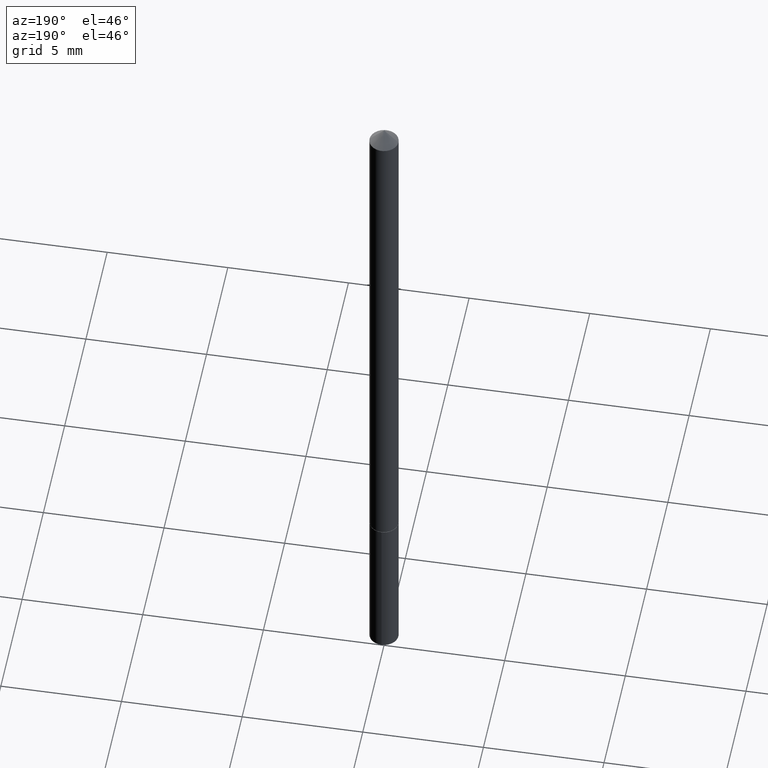
[diagram: clean part render]
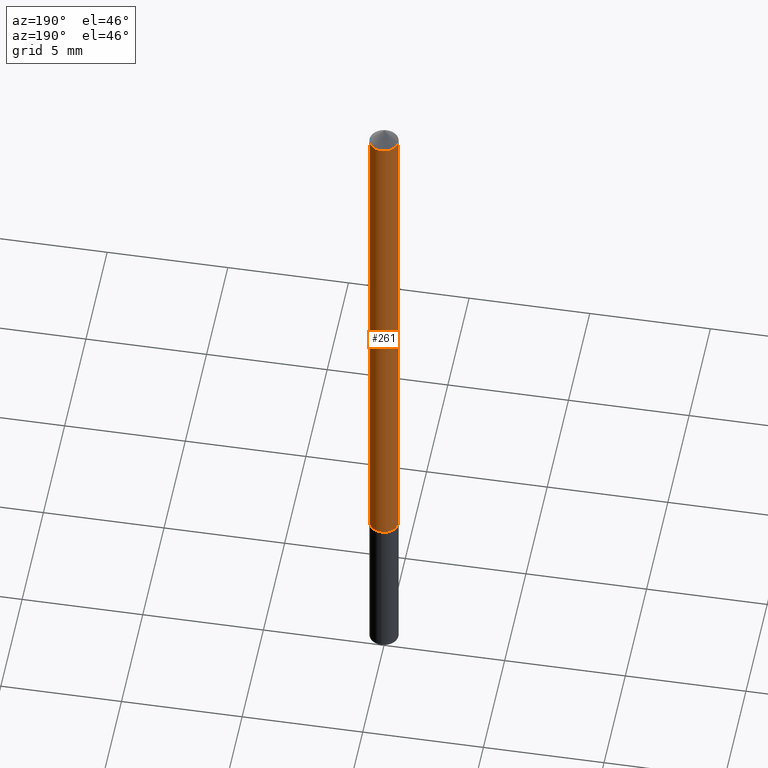
[diagram: same view with one face highlighted and labeled with its STEP entity id]
A machine part, auxiliary view. The second image highlights one B-rep face of the part: STEP entity #261.
In plain terms, the highlighted cylindrical surface (edge-blend (fillet) strip) has radius 0.5994 mm, axis along (-0, 0, 1).
Its self-contained STEP definition (entity closure, byte-faithful):
#7 = CARTESIAN_POINT ( 'NONE',  ( 0.02360000000000010700, -3.351822085289419381E-15, -0.9127999999999999448 ) ) ;
#14 = DIRECTION ( 'NONE',  ( 1.000000000000000000, -6.982962677686265133E-15, 4.876176775795935793E-29 ) ) ;
#18 = ORIENTED_EDGE ( 'NONE', *, *, #194, .T. ) ;
#20 = FACE_OUTER_BOUND ( 'NONE', #122, .T. ) ;
#43 = CIRCLE ( 'NONE', #247, 0.02360000000000000639 ) ;
#50 = VECTOR ( 'NONE', #348, 39.37007874015748143 ) ;
#53 = DIRECTION ( 'NONE',  ( 1.000000000000000000, -6.982962677686267499E-15, 0.000000000000000000 ) ) ;
#57 = EDGE_CURVE ( 'NONE', #349, #145, #43, .T. ) ;
#64 = EDGE_CURVE ( 'NONE', #176, #145, #80, .T. ) ;
#71 = CARTESIAN_POINT ( 'NONE',  ( 0.000000000000000000, 0.000000000000000000, 0.000000000000000000 ) ) ;
#75 = CIRCLE ( 'NONE', #308, 0.02360000000000010700 ) ;
#77 = CARTESIAN_POINT ( 'NONE',  ( 7.642090019328602662E-31, -1.091087918388490267E-16, -0.03125000000000020817 ) ) ;
#80 = LINE ( 'NONE', #155, #92 ) ;
#92 = VECTOR ( 'NONE', #158, 39.37007874015748143 ) ;
#116 = CARTESIAN_POINT ( 'NONE',  ( 2.232223926285792489E-29, -3.187024166096022738E-15, -0.9127999999999999448 ) ) ;
#122 = EDGE_LOOP ( 'NONE', ( #18, #187, #334, #147 ) ) ;
#145 = VERTEX_POINT ( 'NONE', #315 ) ;
#147 = ORIENTED_EDGE ( 'NONE', *, *, #249, .F. ) ;
#150 = DIRECTION ( 'NONE',  ( -2.445468806185136597E-29, 3.491481338843145583E-15, 1.000000000000000000 ) ) ;
#155 = CARTESIAN_POINT ( 'NONE',  ( -0.02360000000000005843, 1.676880856393840590E-16, -1.160868681300160606E-30 ) ) ;
#158 = DIRECTION ( 'NONE',  ( -2.445468806185136877E-29, 3.491481338843145188E-15, 1.000000000000000000 ) ) ;
#167 = CARTESIAN_POINT ( 'NONE',  ( -0.02360000000000010700, -3.019336080456638236E-15, -0.9127999999999999448 ) ) ;
#175 = CYLINDRICAL_SURFACE ( 'NONE', #287, 0.02360000000000005843 ) ;
#176 = VERTEX_POINT ( 'NONE', #167 ) ;
#181 = CARTESIAN_POINT ( 'NONE',  ( 0.02360000000000005843, -1.647979191933962724E-16, 1.150777719087843758E-30 ) ) ;
#187 = ORIENTED_EDGE ( 'NONE', *, *, #64, .T. ) ;
#194 = EDGE_CURVE ( 'NONE', #215, #176, #75, .T. ) ;
#196 = DIRECTION ( 'NONE',  ( -2.445468806185136597E-29, 3.491481338843145583E-15, 1.000000000000000000 ) ) ;
#215 = VERTEX_POINT ( 'NONE', #7 ) ;
#247 = AXIS2_PLACEMENT_3D ( 'NONE', #77, #302, #53 ) ;
#249 = EDGE_CURVE ( 'NONE', #215, #349, #297, .T. ) ;
#258 = DIRECTION ( 'NONE',  ( 1.000000000000000000, -6.982962677686267499E-15, 0.000000000000000000 ) ) ;
#261 = ADVANCED_FACE ( 'NONE', ( #20 ), #175, .T. ) ;
#287 = AXIS2_PLACEMENT_3D ( 'NONE', #71, #150, #14 ) ;
#297 = LINE ( 'NONE', #181, #50 ) ;
#302 = DIRECTION ( 'NONE',  ( -2.445468806185136597E-29, 3.491481338843145583E-15, 1.000000000000000000 ) ) ;
#308 = AXIS2_PLACEMENT_3D ( 'NONE', #116, #196, #258 ) ;
#315 = CARTESIAN_POINT ( 'NONE',  ( -0.02360000000000000639, -1.480378393328050233E-15, -0.03125000000000020817 ) ) ;
#329 = CARTESIAN_POINT ( 'NONE',  ( 0.02360000000000000639, -2.739067110322449540E-16, -0.03125000000000020817 ) ) ;
#334 = ORIENTED_EDGE ( 'NONE', *, *, #57, .F. ) ;
#348 = DIRECTION ( 'NONE',  ( -2.445468806185136877E-29, 3.491481338843145188E-15, 1.000000000000000000 ) ) ;
#349 = VERTEX_POINT ( 'NONE', #329 ) ;